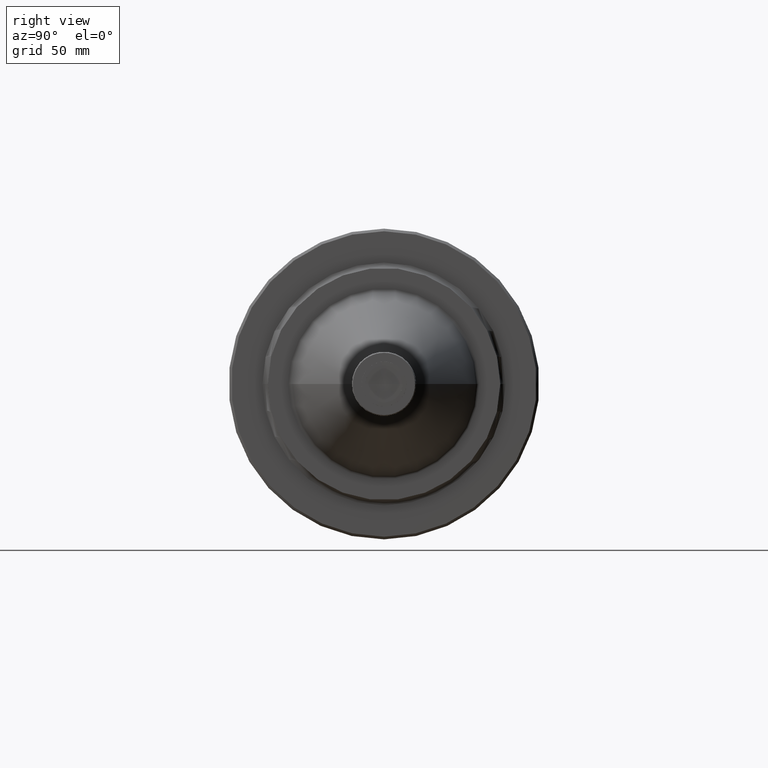
[diagram: clean part render]
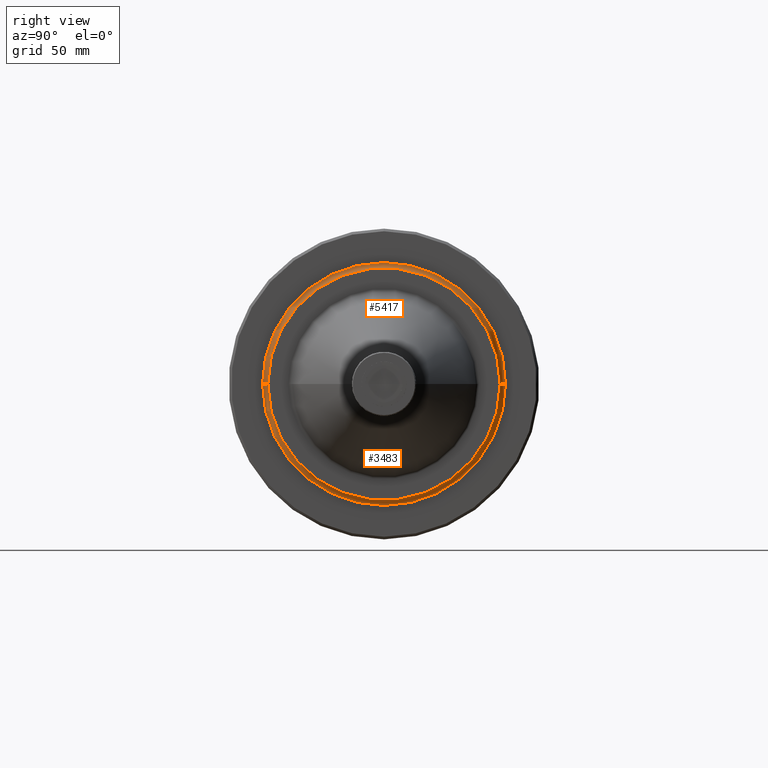
[diagram: same view with one multi-face feature highlighted, each face labeled with its STEP entity id]
A machine part, right view. The highlighted faces form ONE feature: a constant-radius fillet chain: 2 tangent blend faces with common blend radius 3 mm. The faces share edges in the B-rep.
Their STEP definitions:
[1] entity #5417 (Torus):
#190 = VERTEX_POINT ( 'NONE', #1197 ) ;
#324 = CIRCLE ( 'NONE', #7458, 65.99999999999899100 ) ;
#701 = ORIENTED_EDGE ( 'NONE', *, *, #1796, .F. ) ;
#926 = EDGE_CURVE ( 'NONE', #5575, #190, #3305, .T. ) ;
#959 = EDGE_LOOP ( 'NONE', ( #701, #1392, #7163, #5705 ) ) ;
#993 = AXIS2_PLACEMENT_3D ( 'NONE', #6626, #3843, #7247 ) ;
#1197 = CARTESIAN_POINT ( 'NONE',  ( 152.0389117158999900, 68.99999999978625500, -68.22315000000000400 ) ) ;
#1271 = CARTESIAN_POINT ( 'NONE',  ( 155.0389117154747100, 1.387778780781445700E-014, -68.22315000000000400 ) ) ;
#1386 = VERTEX_POINT ( 'NONE', #6185 ) ;
#1392 = ORIENTED_EDGE ( 'NONE', *, *, #3465, .F. ) ;
#1624 = AXIS2_PLACEMENT_3D ( 'NONE', #1271, #2519, #6509 ) ;
#1679 = CARTESIAN_POINT ( 'NONE',  ( 155.0389117158999300, 1.614307482306145800E-014, -68.22315000000000400 ) ) ;
#1796 = EDGE_CURVE ( 'NONE', #1386, #3353, #2828, .T. ) ;
#2024 = DIRECTION ( 'NONE',  ( 0.0000000000000000000, 0.0000000000000000000, -1.000000000000000000 ) ) ;
#2055 = CARTESIAN_POINT ( 'NONE',  ( 155.0389117158999300, 65.99999999999900500, -68.22315000000000400 ) ) ;
#2519 = DIRECTION ( 'NONE',  ( 1.000000000000000000, -8.492394904561674800E-017, -0.0000000000000000000 ) ) ;
#2828 = CIRCLE ( 'NONE', #993, 2.999999999574745500 ) ;
#3237 = AXIS2_PLACEMENT_3D ( 'NONE', #3251, #2024, #3761 ) ;
#3251 = CARTESIAN_POINT ( 'NONE',  ( 155.0389117154747100, 68.99999999957374500, -68.22315000000000400 ) ) ;
#3305 = CIRCLE ( 'NONE', #3237, 2.999999999574731700 ) ;
#3353 = VERTEX_POINT ( 'NONE', #6182 ) ;
#3465 = EDGE_CURVE ( 'NONE', #5575, #1386, #324, .T. ) ;
#3761 = DIRECTION ( 'NONE',  ( -1.000000000000000000, 0.0000000000000000000, 0.0000000000000000000 ) ) ;
#3843 = DIRECTION ( 'NONE',  ( 1.040018423696674700E-032, 1.224646799147353200E-016, 1.000000000000000000 ) ) ;
#3876 = EDGE_CURVE ( 'NONE', #190, #3353, #5989, .T. ) ;
#4057 = DIRECTION ( 'NONE',  ( 0.0000000000000000000, 1.000000000000000000, 0.0000000000000000000 ) ) ;
#4091 = CARTESIAN_POINT ( 'NONE',  ( 152.0389117158999900, 1.639784667019830300E-014, -68.22315000000000400 ) ) ;
#4603 = DIRECTION ( 'NONE',  ( 1.000000000000000000, -8.492394904561674800E-017, -0.0000000000000000000 ) ) ;
#5417 = ADVANCED_FACE ( 'NONE', ( #7190 ), #7447, .F. ) ;
#5575 = VERTEX_POINT ( 'NONE', #2055 ) ;
#5705 = ORIENTED_EDGE ( 'NONE', *, *, #3876, .T. ) ;
#5989 = CIRCLE ( 'NONE', #6290, 68.99999999999876400 ) ;
#6182 = CARTESIAN_POINT ( 'NONE',  ( 152.0389117158999900, -68.99999999978622600, -68.22314999999999000 ) ) ;
#6185 = CARTESIAN_POINT ( 'NONE',  ( 155.0389117158999300, -65.99999999999897700, -68.22314999999999000 ) ) ;
#6290 = AXIS2_PLACEMENT_3D ( 'NONE', #4091, #4603, #4057 ) ;
#6333 = DIRECTION ( 'NONE',  ( 1.000000000000000000, -8.492394904561674800E-017, -0.0000000000000000000 ) ) ;
#6405 = DIRECTION ( 'NONE',  ( 0.0000000000000000000, 1.000000000000000000, 0.0000000000000000000 ) ) ;
#6509 = DIRECTION ( 'NONE',  ( 8.492394904561674800E-017, 1.000000000000000000, 0.0000000000000000000 ) ) ;
#6626 = CARTESIAN_POINT ( 'NONE',  ( 155.0389117154747100, -68.99999999957371700, -68.22314999999999000 ) ) ;
#7163 = ORIENTED_EDGE ( 'NONE', *, *, #926, .T. ) ;
#7190 = FACE_OUTER_BOUND ( 'NONE', #959, .T. ) ;
#7247 = DIRECTION ( 'NONE',  ( 0.0000000000000000000, -1.000000000000000000, 0.0000000000000000000 ) ) ;
#7447 = TOROIDAL_SURFACE ( 'NONE', #1624, 68.99999999957373100, 2.999999999574738800 ) ;
#7458 = AXIS2_PLACEMENT_3D ( 'NONE', #1679, #6333, #6405 ) ;
[2] entity #3483 (Torus):
#190 = VERTEX_POINT ( 'NONE', #1197 ) ;
#770 = DIRECTION ( 'NONE',  ( 1.000000000000000000, -8.492394904561674800E-017, -0.0000000000000000000 ) ) ;
#803 = ORIENTED_EDGE ( 'NONE', *, *, #926, .F. ) ;
#926 = EDGE_CURVE ( 'NONE', #5575, #190, #3305, .T. ) ;
#974 = ORIENTED_EDGE ( 'NONE', *, *, #1796, .T. ) ;
#993 = AXIS2_PLACEMENT_3D ( 'NONE', #6626, #3843, #7247 ) ;
#1197 = CARTESIAN_POINT ( 'NONE',  ( 152.0389117158999900, 68.99999999978625500, -68.22315000000000400 ) ) ;
#1386 = VERTEX_POINT ( 'NONE', #6185 ) ;
#1541 = AXIS2_PLACEMENT_3D ( 'NONE', #4238, #770, #5494 ) ;
#1654 = CARTESIAN_POINT ( 'NONE',  ( 155.0389117154747100, 1.387778780781445700E-014, -68.22315000000000400 ) ) ;
#1796 = EDGE_CURVE ( 'NONE', #1386, #3353, #2828, .T. ) ;
#1935 = EDGE_CURVE ( 'NONE', #3353, #190, #3001, .T. ) ;
#2015 = AXIS2_PLACEMENT_3D ( 'NONE', #2132, #5069, #2725 ) ;
#2024 = DIRECTION ( 'NONE',  ( 0.0000000000000000000, 0.0000000000000000000, -1.000000000000000000 ) ) ;
#2055 = CARTESIAN_POINT ( 'NONE',  ( 155.0389117158999300, 65.99999999999900500, -68.22315000000000400 ) ) ;
#2125 = TOROIDAL_SURFACE ( 'NONE', #3814, 68.99999999957373100, 2.999999999574738800 ) ;
#2132 = CARTESIAN_POINT ( 'NONE',  ( 152.0389117158999900, 1.639784667019830300E-014, -68.22315000000000400 ) ) ;
#2725 = DIRECTION ( 'NONE',  ( 0.0000000000000000000, 1.000000000000000000, 0.0000000000000000000 ) ) ;
#2828 = CIRCLE ( 'NONE', #993, 2.999999999574745500 ) ;
#2968 = ORIENTED_EDGE ( 'NONE', *, *, #1935, .T. ) ;
#3001 = CIRCLE ( 'NONE', #2015, 68.99999999999876400 ) ;
#3237 = AXIS2_PLACEMENT_3D ( 'NONE', #3251, #2024, #3761 ) ;
#3251 = CARTESIAN_POINT ( 'NONE',  ( 155.0389117154747100, 68.99999999957374500, -68.22315000000000400 ) ) ;
#3305 = CIRCLE ( 'NONE', #3237, 2.999999999574731700 ) ;
#3353 = VERTEX_POINT ( 'NONE', #6182 ) ;
#3482 = EDGE_LOOP ( 'NONE', ( #7171, #974, #2968, #803 ) ) ;
#3483 = ADVANCED_FACE ( 'NONE', ( #5302 ), #2125, .F. ) ;
#3761 = DIRECTION ( 'NONE',  ( -1.000000000000000000, 0.0000000000000000000, 0.0000000000000000000 ) ) ;
#3814 = AXIS2_PLACEMENT_3D ( 'NONE', #1654, #7492, #5779 ) ;
#3843 = DIRECTION ( 'NONE',  ( 1.040018423696674700E-032, 1.224646799147353200E-016, 1.000000000000000000 ) ) ;
#4238 = CARTESIAN_POINT ( 'NONE',  ( 155.0389117158999300, 1.614307482306145800E-014, -68.22315000000000400 ) ) ;
#5069 = DIRECTION ( 'NONE',  ( 1.000000000000000000, -8.492394904561674800E-017, -0.0000000000000000000 ) ) ;
#5302 = FACE_OUTER_BOUND ( 'NONE', #3482, .T. ) ;
#5342 = CIRCLE ( 'NONE', #1541, 65.99999999999899100 ) ;
#5494 = DIRECTION ( 'NONE',  ( 0.0000000000000000000, 1.000000000000000000, 0.0000000000000000000 ) ) ;
#5575 = VERTEX_POINT ( 'NONE', #2055 ) ;
#5779 = DIRECTION ( 'NONE',  ( 8.492394904561674800E-017, 1.000000000000000000, 0.0000000000000000000 ) ) ;
#6182 = CARTESIAN_POINT ( 'NONE',  ( 152.0389117158999900, -68.99999999978622600, -68.22314999999999000 ) ) ;
#6185 = CARTESIAN_POINT ( 'NONE',  ( 155.0389117158999300, -65.99999999999897700, -68.22314999999999000 ) ) ;
#6354 = EDGE_CURVE ( 'NONE', #1386, #5575, #5342, .T. ) ;
#6626 = CARTESIAN_POINT ( 'NONE',  ( 155.0389117154747100, -68.99999999957371700, -68.22314999999999000 ) ) ;
#7171 = ORIENTED_EDGE ( 'NONE', *, *, #6354, .F. ) ;
#7247 = DIRECTION ( 'NONE',  ( 0.0000000000000000000, -1.000000000000000000, 0.0000000000000000000 ) ) ;
#7492 = DIRECTION ( 'NONE',  ( 1.000000000000000000, -8.492394904561674800E-017, -0.0000000000000000000 ) ) ;